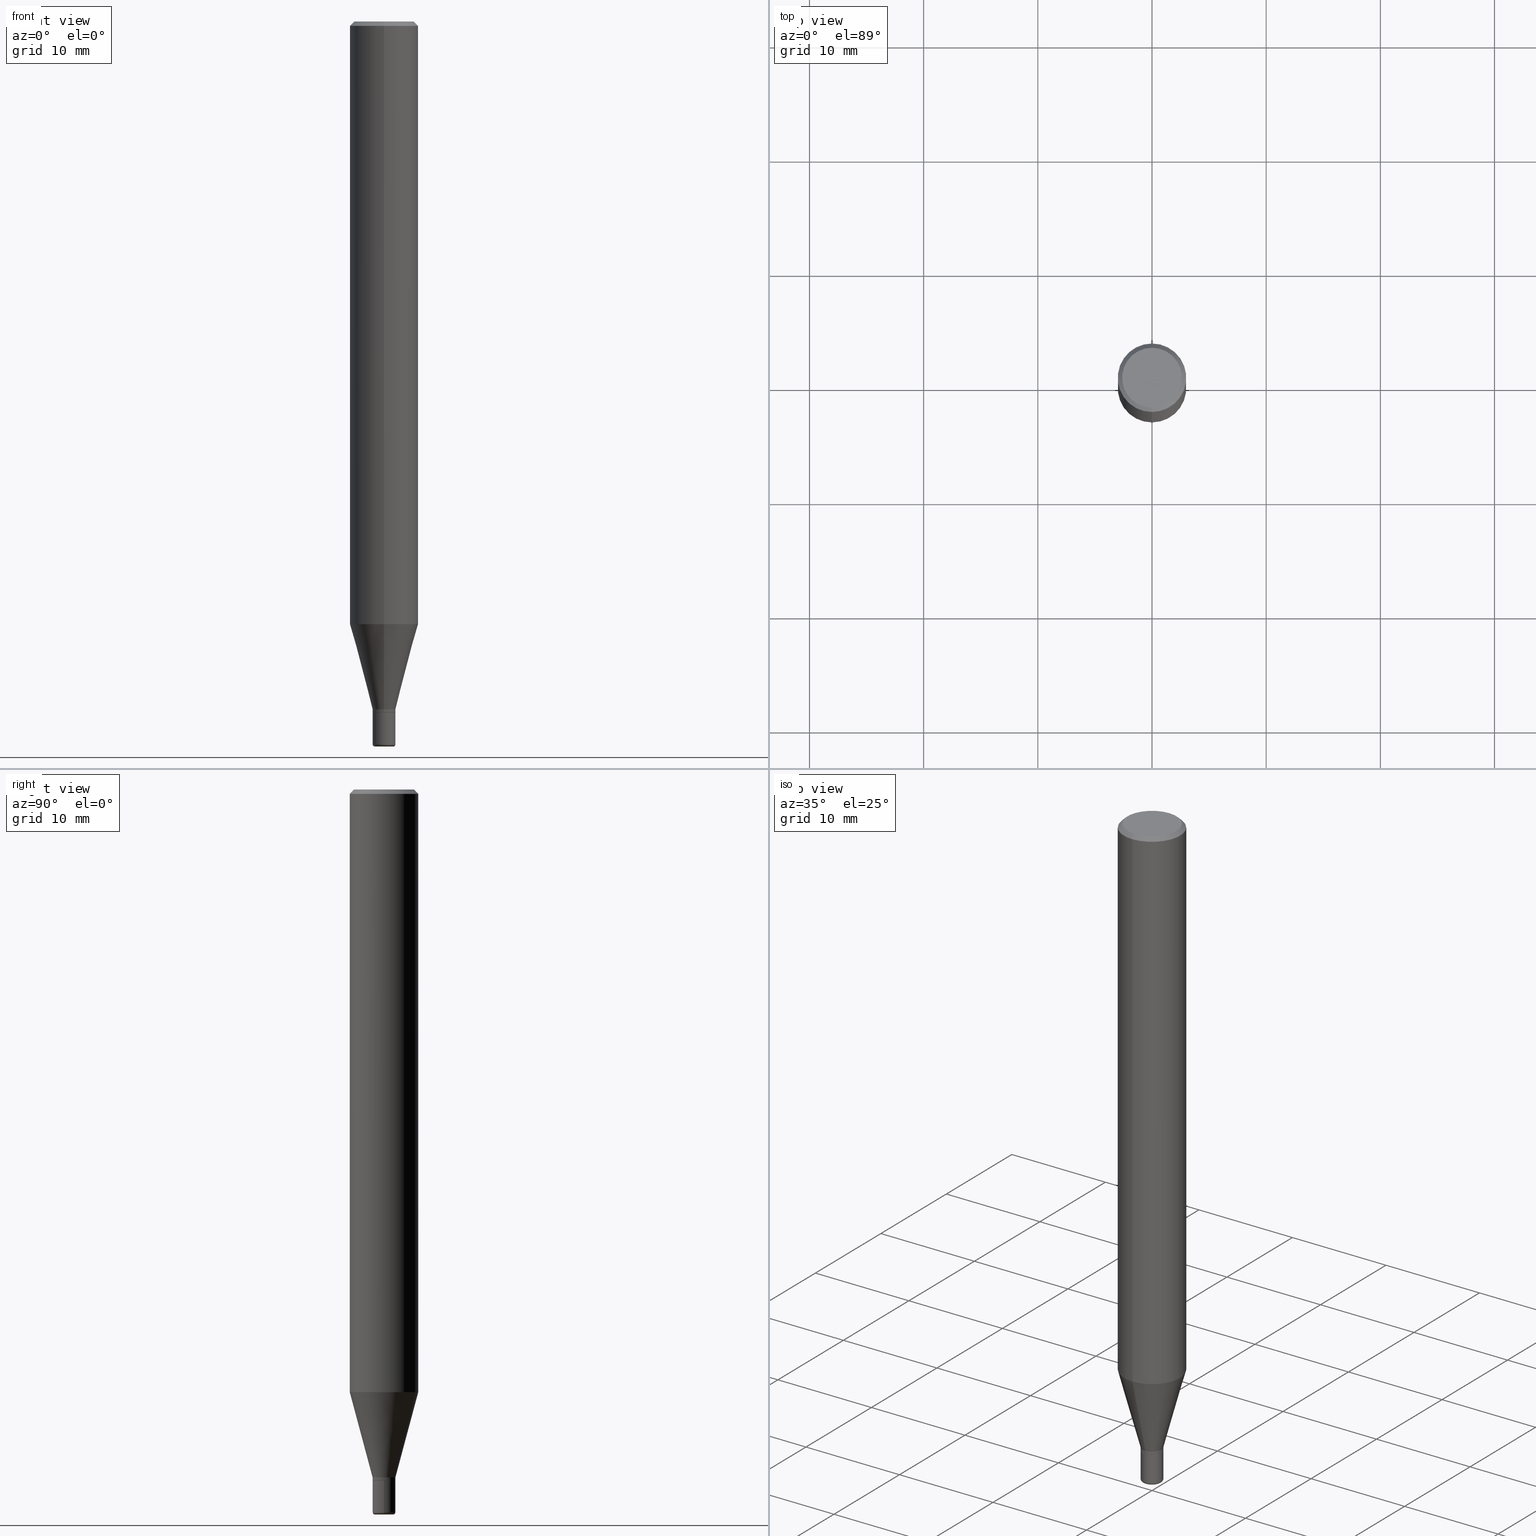
[diagram: canonical four-view strip — front | top / right | iso, engineering-drawing reading convention]
A machine part, canonical four-view strip (front | top / right | iso — engineering-drawing reading convention). The complete STEP part file that produces these views, byte-faithful:
ISO-10303-21;
HEADER;
FILE_DESCRIPTION (( 'STEP AP203' ),
    '1' );
FILE_NAME ('05345.STEP',
    '2024-02-29T19:37:12',
    ( '' ),
    ( '' ),
    'SwSTEP 2.0',
    'SolidWorks 2023',
    '' );
FILE_SCHEMA (( 'CONFIG_CONTROL_DESIGN' ));
ENDSEC;

DATA;
#1 = ADVANCED_FACE ( 'NONE', ( #170 ), #447, .F. ) ;
#2 = LINE ( 'NONE', #292, #290 ) ;
#3 = EDGE_LOOP ( 'NONE', ( #465, #212, #249, #289 ) ) ;
#4 = LINE ( 'NONE', #168, #514 ) ;
#5 = ORIENTED_EDGE ( 'NONE', *, *, #340, .T. ) ;
#6 = ORIENTED_EDGE ( 'NONE', *, *, #18, .T. ) ;
#7 = PERSON_AND_ORGANIZATION_ROLE ( 'classification_officer' ) ;
#8 = VERTEX_POINT ( 'NONE', #260 ) ;
#9 = CIRCLE ( 'NONE', #506, 0.03935000000000007242 ) ;
#10 = AXIS2_PLACEMENT_3D ( 'NONE', #492, #13, #98 ) ;
#11 = DIRECTION ( 'NONE',  ( -2.445160199248264608E-29, 3.491923281541562351E-15, 1.000000000000000000 ) ) ;
#12 = EDGE_CURVE ( 'NONE', #239, #297, #373, .T. ) ;
#13 = DIRECTION ( 'NONE',  ( -2.445468806185136597E-29, 3.491481338843145583E-15, 1.000000000000000000 ) ) ;
#14 = CARTESIAN_POINT ( 'NONE',  ( 0.03935000000000010711, -8.975900225897956159E-15, -2.492099999999999316 ) ) ;
#15 = VERTEX_POINT ( 'NONE', #66 ) ;
#16 = APPLICATION_CONTEXT ( 'configuration controlled 3d designs of mechanical parts and assemblies' ) ;
#17 = DIRECTION ( 'NONE',  ( 1.000000000000000000, -6.982962677686251722E-15, 4.883557194083107856E-29 ) ) ;
#18 = EDGE_CURVE ( 'NONE', #177, #8, #220, .T. ) ;
#19 = CONICAL_SURFACE ( 'NONE', #445, 0.03935000000000007242, 0.2617993877991495189 ) ;
#20 = FACE_OUTER_BOUND ( 'NONE', #3, .T. ) ;
#21 = VECTOR ( 'NONE', #356, 39.37007874015748854 ) ;
#22 = ORIENTED_EDGE ( 'NONE', *, *, #145, .F. ) ;
#23 = AXIS2_PLACEMENT_3D ( 'NONE', #397, #204, #360 ) ;
#24 = DIRECTION ( 'NONE',  ( 1.000000000000000000, -6.982962677686277755E-15, 0.000000000000000000 ) ) ;
#25 = PLANE ( 'NONE',  #88 ) ;
#26 = DIRECTION ( 'NONE',  ( 7.105427357601001859E-15, 1.000000000000000000, -3.491481338843145583E-15 ) ) ;
#27 = ORIENTED_EDGE ( 'NONE', *, *, #166, .F. ) ;
#28 = DIRECTION ( 'NONE',  ( 2.438088387897960049E-29, -3.491481338843145188E-15, -1.000000000000000000 ) ) ;
#29 = EDGE_LOOP ( 'NONE', ( #304, #288 ) ) ;
#30 = DATE_AND_TIME ( #416, #326 ) ;
#31 = AXIS2_PLACEMENT_3D ( 'NONE', #350, #509, #157 ) ;
#32 = CARTESIAN_POINT ( 'NONE',  ( 5.824862149452377611E-29, -8.316359400990489234E-15, -2.381899999999999906 ) ) ;
#33 = EDGE_CURVE ( 'NONE', #95, #48, #378, .T. ) ;
#34 = TOROIDAL_SURFACE ( 'NONE', #135, 0.03144999999999999185, 0.007900000000000111794 ) ;
#35 = DIRECTION ( 'NONE',  ( -2.445160199248264608E-29, 3.491923281541562351E-15, 1.000000000000000000 ) ) ;
#36 = DIRECTION ( 'NONE',  ( -2.445160199248264608E-29, 3.491923281541562351E-15, 1.000000000000000000 ) ) ;
#37 = CARTESIAN_POINT ( 'NONE',  ( 2.795985665216569822E-16, 0.03934999999999160003, -2.381400000000000627 ) ) ;
#38 = DIRECTION ( 'NONE',  ( -2.445160199248264608E-29, 3.491923281541562351E-15, 1.000000000000000000 ) ) ;
#39 = AXIS2_PLACEMENT_3D ( 'NONE', #417, #230, #420 ) ;
#40 = DIRECTION ( 'NONE',  ( -2.445468806185136597E-29, 3.491481338843145583E-15, 1.000000000000000000 ) ) ;
#41 = CARTESIAN_POINT ( 'NONE',  ( 2.795985665216578697E-16, 0.03934999999999178738, -2.371900000000000563 ) ) ;
#42 =( NAMED_UNIT ( * ) SI_UNIT ( $, .STERADIAN. ) SOLID_ANGLE_UNIT ( ) );
#43 = CARTESIAN_POINT ( 'NONE',  ( 6.094352811893978816E-29, -8.701120644531002820E-15, -2.492099999999999760 ) ) ;
#44 = EDGE_LOOP ( 'NONE', ( #251, #444 ) ) ;
#45 = ORIENTED_EDGE ( 'NONE', *, *, #425, .T. ) ;
#46 = AXIS2_PLACEMENT_3D ( 'NONE', #502, #413, #58 ) ;
#47 = DIRECTION ( 'NONE',  ( 1.000000000000000000, -6.982962677686250933E-15, 0.000000000000000000 ) ) ;
#48 = VERTEX_POINT ( 'NONE', #262 ) ;
#49 = VERTEX_POINT ( 'NONE', #14 ) ;
#50 = EDGE_LOOP ( 'NONE', ( #173, #450, #369, #483 ) ) ;
#51 = LENGTH_MEASURE_WITH_UNIT ( LENGTH_MEASURE( 0.02539999999999999897 ), #253 );
#52 = CARTESIAN_POINT ( 'NONE',  ( 5.824127078589441601E-29, -8.317412064303848413E-15, -2.381899999999999906 ) ) ;
#53 = ORIENTED_EDGE ( 'NONE', *, *, #252, .T. ) ;
#54 = CIRCLE ( 'NONE', #162, 0.03885000000000005116 ) ;
#55 = AXIS2_PLACEMENT_3D ( 'NONE', #175, #477, #436 ) ;
#56 = CARTESIAN_POINT ( 'NONE',  ( -2.747795813668976259E-16, -0.03935000000000850318, -2.381399999999999739 ) ) ;
#57 = PERSON_AND_ORGANIZATION ( #160, #348 ) ;
#58 = DIRECTION ( 'NONE',  ( -6.982962677686265922E-15, -1.000000000000000000, 3.487819265831411744E-15 ) ) ;
#59 = CARTESIAN_POINT ( 'NONE',  ( 8.246878922347483612E-16, 0.1180999999999999411, -0.01500000000000036894 ) ) ;
#60 = CC_DESIGN_DATE_AND_TIME_ASSIGNMENT ( #501, #467, ( #93 ) ) ;
#61 = APPROVAL_ROLE ( '' ) ;
#62 = DIRECTION ( 'NONE',  ( -2.445160199248264608E-29, 3.491923281541562351E-15, 1.000000000000000000 ) ) ;
#63 = EDGE_LOOP ( 'NONE', ( #273, #156, #70, #116 ) ) ;
#64 = DIRECTION ( 'NONE',  ( -2.445160199248264608E-29, 3.491923281541562351E-15, 1.000000000000000000 ) ) ;
#65 = COORDINATED_UNIVERSAL_TIME_OFFSET ( 5, 0, .BEHIND. ) ;
#66 = CARTESIAN_POINT ( 'NONE',  ( 8.391509709327291772E-16, 0.1180999999999927802, -2.078000998903951846 ) ) ;
#67 = ORIENTED_EDGE ( 'NONE', *, *, #517, .T. ) ;
#68 = CONICAL_SURFACE ( 'NONE', #463, 0.03885000000000005116, 0.7853981633975507526 ) ;
#69 = CARTESIAN_POINT ( 'NONE',  ( 0.03144999999999999185, -8.948317523321097191E-15, -2.500000000000000000 ) ) ;
#70 = ORIENTED_EDGE ( 'NONE', *, *, #242, .T. ) ;
#71 = PLANE ( 'NONE',  #474 ) ;
#72 = PERSON_AND_ORGANIZATION ( #160, #348 ) ;
#73 = VERTEX_POINT ( 'NONE', #457 ) ;
#74 = EDGE_CURVE ( 'NONE', #367, #73, #404, .T. ) ;
#75 = DIRECTION ( 'NONE',  ( -2.438088387897960049E-29, 3.491481338843145188E-15, 1.000000000000000000 ) ) ;
#76 = DESIGN_CONTEXT ( 'detailed design', #16, 'design' ) ;
#77 = DIRECTION ( 'NONE',  ( -6.982962677686265922E-15, -1.000000000000000000, 3.491923281541563140E-15 ) ) ;
#78 = ORIENTED_EDGE ( 'NONE', *, *, #353, .T. ) ;
#79 = FACE_OUTER_BOUND ( 'NONE', #365, .T. ) ;
#80 = ADVANCED_FACE ( 'NONE', ( #20 ), #188, .T. ) ;
#81 = FACE_OUTER_BOUND ( 'NONE', #286, .T. ) ;
#82 = FACE_OUTER_BOUND ( 'NONE', #50, .T. ) ;
#83 = LINE ( 'NONE', #41, #21 ) ;
#84 = CONICAL_SURFACE ( 'NONE', #371, 0.03885000000000005116, 0.7853981633975507526 ) ;
#85 =( CONVERSION_BASED_UNIT ( 'INCH', #51 ) LENGTH_UNIT ( ) NAMED_UNIT ( #269 ) );
#86 = AXIS2_PLACEMENT_3D ( 'NONE', #511, #234, #77 ) ;
#87 = CLOSED_SHELL ( 'NONE', ( #96, #287, #510, #80, #151, #499, #497, #379, #1, #313, #246, #454 ) ) ;
#88 = AXIS2_PLACEMENT_3D ( 'NONE', #227, #498, #316 ) ;
#89 = CARTESIAN_POINT ( 'NONE',  ( 0.03935000000000000303, -8.591138982357444151E-15, -2.381899999999999906 ) ) ;
#90 = EDGE_CURVE ( 'NONE', #48, #15, #83, .T. ) ;
#91 = ADVANCED_FACE ( 'NONE', ( #515 ), #240, .T. ) ;
#92 = ORIENTED_EDGE ( 'NONE', *, *, #74, .T. ) ;
#93 = SECURITY_CLASSIFICATION ( '', '', #127 ) ;
#94 = VECTOR ( 'NONE', #193, 39.37007874015748143 ) ;
#95 = VERTEX_POINT ( 'NONE', #37 ) ;
#96 = ADVANCED_FACE ( 'NONE', ( #518 ), #323, .T. ) ;
#97 = APPLICATION_PROTOCOL_DEFINITION ( 'international standard', 'config_control_design', 1994, #16 ) ;
#98 = DIRECTION ( 'NONE',  ( 1.000000000000000000, -6.982962677686250933E-15, 0.000000000000000000 ) ) ;
#99 = EDGE_CURVE ( 'NONE', #191, #297, #278, .T. ) ;
#100 =( NAMED_UNIT ( * ) PLANE_ANGLE_UNIT ( ) SI_UNIT ( $, .RADIAN. ) );
#101 = DIRECTION ( 'NONE',  ( -2.445160199248264608E-29, 3.491923281541562351E-15, 1.000000000000000000 ) ) ;
#102 = PERSON_AND_ORGANIZATION ( #160, #348 ) ;
#103 = CIRCLE ( 'NONE', #504, 0.03935000000000007242 ) ;
#104 = EDGE_LOOP ( 'NONE', ( #215, #78, #441, #165 ) ) ;
#105 = LINE ( 'NONE', #59, #349 ) ;
#106 = CARTESIAN_POINT ( 'NONE',  ( 5.799675476596958470E-29, -8.282492831488431921E-15, -2.371900000000000119 ) ) ;
#107 = CARTESIAN_POINT ( 'NONE',  ( -1.114119938109327852E-48, 1.591070127638127819E-34, 4.556429220677854878E-20 ) ) ;
#108 = EDGE_LOOP ( 'NONE', ( #167, #6, #211, #112 ) ) ;
#109 = CARTESIAN_POINT ( 'NONE',  ( 6.094352811893978816E-29, -8.701120644531002820E-15, -2.492099999999999760 ) ) ;
#110 = FACE_OUTER_BOUND ( 'NONE', #108, .T. ) ;
#111 = CC_DESIGN_SECURITY_CLASSIFICATION ( #93, ( #243 ) ) ;
#112 = ORIENTED_EDGE ( 'NONE', *, *, #415, .F. ) ;
#113 = ORIENTED_EDGE ( 'NONE', *, *, #460, .F. ) ;
#114 = CARTESIAN_POINT ( 'NONE',  ( 5.822904498489816884E-29, -8.315666102663078061E-15, -2.381400000000000183 ) ) ;
#115 = APPROVAL_DATE_TIME ( #30, #321 ) ;
#116 = ORIENTED_EDGE ( 'NONE', *, *, #442, .F. ) ;
#117 = DIRECTION ( 'NONE',  ( -2.445468806185136877E-29, 3.491481338843145188E-15, 1.000000000000000000 ) ) ;
#118 = LINE ( 'NONE', #354, #309 ) ;
#119 = ADVANCED_FACE ( 'NONE', ( #81 ), #440, .T. ) ;
#120 = FACE_OUTER_BOUND ( 'NONE', #184, .T. ) ;
#121 = DIRECTION ( 'NONE',  ( -6.982962677686265922E-15, -1.000000000000000000, 3.491923281541563140E-15 ) ) ;
#122 = DIRECTION ( 'NONE',  ( 1.000000000000000000, -6.982962677686277755E-15, 0.000000000000000000 ) ) ;
#123 = CARTESIAN_POINT ( 'NONE',  ( 6.094352811893977695E-29, -8.701120644531001242E-15, -2.492099999999999316 ) ) ;
#124 = EDGE_LOOP ( 'NONE', ( #137, #293, #189, #485 ) ) ;
#125 = DATE_AND_TIME ( #361, #268 ) ;
#126 = CARTESIAN_POINT ( 'NONE',  ( 0.000000000000000000, 0.000000000000000000, 0.000000000000000000 ) ) ;
#127 = SECURITY_CLASSIFICATION_LEVEL ( 'unclassified' ) ;
#128 = EDGE_CURVE ( 'NONE', #8, #49, #490, .T. ) ;
#129 = ORIENTED_EDGE ( 'NONE', *, *, #192, .F. ) ;
#130 = EDGE_LOOP ( 'NONE', ( #199, #449, #132, #325 ) ) ;
#131 = VERTEX_POINT ( 'NONE', #210 ) ;
#132 = ORIENTED_EDGE ( 'NONE', *, *, #252, .F. ) ;
#133 = CC_DESIGN_APPROVAL ( #470, ( #322 ) ) ;
#134 = ORIENTED_EDGE ( 'NONE', *, *, #205, .T. ) ;
#135 = AXIS2_PLACEMENT_3D ( 'NONE', #109, #140, #17 ) ;
#136 = MANIFOLD_SOLID_BREP ( 'Body-Move/Copy2[1]', #327 ) ;
#137 = ORIENTED_EDGE ( 'NONE', *, *, #183, .F. ) ;
#138 = MANIFOLD_SOLID_BREP ( 'Body-Move/Copy2[2]', #87 ) ;
#139 = CARTESIAN_POINT ( 'NONE',  ( 3.667740298872386437E-31, -5.237884922312328859E-17, -0.01499999999999995781 ) ) ;
#140 = DIRECTION ( 'NONE',  ( -2.445468806185136597E-29, 3.491481338843145583E-15, 1.000000000000000000 ) ) ;
#141 = DIRECTION ( 'NONE',  ( -2.445160199248264608E-29, 3.491923281541562351E-15, 1.000000000000000000 ) ) ;
#142 = PERSON_AND_ORGANIZATION ( #160, #348 ) ;
#143 = CC_DESIGN_PERSON_AND_ORGANIZATION_ASSIGNMENT ( #406, #7, ( #93 ) ) ;
#144 = CARTESIAN_POINT ( 'NONE',  ( 5.824862149452377611E-29, -8.316359400990489234E-15, -2.381899999999999906 ) ) ;
#145 = EDGE_CURVE ( 'NONE', #8, #131, #4, .T. ) ;
#146 = ORIENTED_EDGE ( 'NONE', *, *, #442, .T. ) ;
#147 = LINE ( 'NONE', #254, #152 ) ;
#148 = DIRECTION ( 'NONE',  ( -2.445160199248264608E-29, 3.491923281541562351E-15, 1.000000000000000000 ) ) ;
#149 = CARTESIAN_POINT ( 'NONE',  ( -0.03144999999999999185, -8.477654954134451468E-15, -2.492099999999999760 ) ) ;
#150 = CARTESIAN_POINT ( 'NONE',  ( 3.667740298872386437E-31, -5.237884922312328859E-17, -0.01499999999999995781 ) ) ;
#151 = ADVANCED_FACE ( 'NONE', ( #386 ), #291, .T. ) ;
#152 = VECTOR ( 'NONE', #422, 39.37007874015748143 ) ;
#153 = AXIS2_PLACEMENT_3D ( 'NONE', #399, #222, #213 ) ;
#154 = AXIS2_PLACEMENT_3D ( 'NONE', #126, #479, #121 ) ;
#155 = DIRECTION ( 'NONE',  ( -1.000000000000000000, 6.982962677686265922E-15, -4.876176775795935793E-29 ) ) ;
#156 = ORIENTED_EDGE ( 'NONE', *, *, #280, .T. ) ;
#157 = DIRECTION ( 'NONE',  ( -6.982962677686265922E-15, -1.000000000000000000, 3.491923281541562746E-15 ) ) ;
#158 = LINE ( 'NONE', #320, #174 ) ;
#159 = APPLICATION_CONTEXT ( 'configuration controlled 3d designs of mechanical parts and assemblies' ) ;
#160 = PERSON ( 'UNSPECIFIED', 'UNSPECIFIED', 'UNSPECIFIED', ('UNSPECIFIED'), ('UNSPECIFIED'), ('UNSPECIFIED') ) ;
#161 = CARTESIAN_POINT ( 'NONE',  ( 6.113672015462842613E-29, -8.728703347107864943E-15, -2.500000000000000000 ) ) ;
#162 = AXIS2_PLACEMENT_3D ( 'NONE', #338, #64, #496 ) ;
#163 = DIRECTION ( 'NONE',  ( -6.982962677686266711E-15, -1.000000000000000000, 3.491481338843145583E-15 ) ) ;
#164 = PERSON_AND_ORGANIZATION_ROLE ( 'design_owner' ) ;
#165 = ORIENTED_EDGE ( 'NONE', *, *, #242, .F. ) ;
#166 = EDGE_CURVE ( 'NONE', #191, #15, #437, .T. ) ;
#167 = ORIENTED_EDGE ( 'NONE', *, *, #363, .T. ) ;
#168 = CARTESIAN_POINT ( 'NONE',  ( -0.03935000000000005160, 2.795985665215997898E-16, -1.935600958015308094E-30 ) ) ;
#169 = VERTEX_POINT ( 'NONE', #89 ) ;
#170 = FACE_OUTER_BOUND ( 'NONE', #315, .T. ) ;
#171 = VERTEX_POINT ( 'NONE', #382 ) ;
#172 = COORDINATED_UNIVERSAL_TIME_OFFSET ( 5, 0, .BEHIND. ) ;
#173 = ORIENTED_EDGE ( 'NONE', *, *, #319, .F. ) ;
#174 = VECTOR ( 'NONE', #512, 39.37007874015748143 ) ;
#175 = CARTESIAN_POINT ( 'NONE',  ( 0.000000000000000000, 0.000000000000000000, 0.000000000000000000 ) ) ;
#176 = DATE_AND_TIME ( #480, #317 ) ;
#177 = VERTEX_POINT ( 'NONE', #380 ) ;
#178 = DIRECTION ( 'NONE',  ( -6.982962677686264344E-15, -1.000000000000000000, 6.942434545525433679E-15 ) ) ;
#179 = COORDINATED_UNIVERSAL_TIME_OFFSET ( 5, 0, .BEHIND. ) ;
#180 = ORIENTED_EDGE ( 'NONE', *, *, #264, .T. ) ;
#181 = DIRECTION ( 'NONE',  ( -2.445160199248264608E-29, 3.491923281541562351E-15, 1.000000000000000000 ) ) ;
#182 = EDGE_CURVE ( 'NONE', #297, #239, #217, .T. ) ;
#183 = EDGE_CURVE ( 'NONE', #73, #367, #241, .T. ) ;
#184 = EDGE_LOOP ( 'NONE', ( #180, #391, #312, #113 ) ) ;
#185 = CARTESIAN_POINT ( 'NONE',  ( 6.113672015462842613E-29, -8.728703347107864943E-15, -2.500000000000000000 ) ) ;
#186 = CC_DESIGN_APPROVAL ( #408, ( #243 ) ) ;
#187 = AXIS2_PLACEMENT_3D ( 'NONE', #345, #101, #335 ) ;
#188 = CYLINDRICAL_SURFACE ( 'NONE', #55, 0.1180999999999999966 ) ;
#189 = ORIENTED_EDGE ( 'NONE', *, *, #182, .T. ) ;
#190 = DIRECTION ( 'NONE',  ( -6.982962677686266711E-15, -1.000000000000000000, 0.000000000000000000 ) ) ;
#191 = VERTEX_POINT ( 'NONE', #295 ) ;
#192 = EDGE_CURVE ( 'NONE', #15, #191, #308, .T. ) ;
#193 = DIRECTION ( 'NONE',  ( -4.937700262165053702E-15, -0.7071067811866175168, 0.7071067811864775177 ) ) ;
#194 = LINE ( 'NONE', #393, #270 ) ;
#195 = CIRCLE ( 'NONE', #446, 0.03935000000000000303 ) ;
#196 = DIRECTION ( 'NONE',  ( 1.000000000000000000, -6.982962677686265922E-15, 4.876176775795935793E-29 ) ) ;
#197 = ORIENTED_EDGE ( 'NONE', *, *, #401, .F. ) ;
#198 = DIRECTION ( 'NONE',  ( -6.982962677686264344E-15, -1.000000000000000000, 6.942434545525433679E-15 ) ) ;
#199 = ORIENTED_EDGE ( 'NONE', *, *, #275, .T. ) ;
#200 = DIRECTION ( 'NONE',  ( 1.000000000000000000, -6.982962677686266711E-15, 4.876176775795935793E-29 ) ) ;
#201 = CARTESIAN_POINT ( 'NONE',  ( 2.778222096822577163E-16, 0.03884999999999173836, -2.381899999999999906 ) ) ;
#202 = AXIS2_PLACEMENT_3D ( 'NONE', #150, #375, #494 ) ;
#203 = ORIENTED_EDGE ( 'NONE', *, *, #363, .F. ) ;
#204 = DIRECTION ( 'NONE',  ( -2.445468806185136597E-29, 3.491481338843145583E-15, 1.000000000000000000 ) ) ;
#205 = EDGE_CURVE ( 'NONE', #177, #271, #283, .T. ) ;
#206 = APPLICATION_PROTOCOL_DEFINITION ( 'international standard', 'config_control_design', 1994, #159 ) ;
#207 = DIRECTION ( 'NONE',  ( 1.000000000000000000, -6.982962677686251722E-15, 4.883557194083107856E-29 ) ) ;
#208 = VERTEX_POINT ( 'NONE', #218 ) ;
#209 = VERTEX_POINT ( 'NONE', #56 ) ;
#210 = CARTESIAN_POINT ( 'NONE',  ( -0.03935000000000000303, -8.229141456239145054E-15, -2.381899999999999906 ) ) ;
#211 = ORIENTED_EDGE ( 'NONE', *, *, #264, .F. ) ;
#212 = ORIENTED_EDGE ( 'NONE', *, *, #267, .T. ) ;
#213 = DIRECTION ( 'NONE',  ( 1.000000000000000000, 0.000000000000000000, 0.000000000000000000 ) ) ;
#214 = PRODUCT ( '05345', '05345', '', ( #370 ) ) ;
#215 = ORIENTED_EDGE ( 'NONE', *, *, #266, .T. ) ;
#216 = DIRECTION ( 'NONE',  ( 2.445160199248264608E-29, -3.491923281541562351E-15, -1.000000000000000000 ) ) ;
#217 = CIRCLE ( 'NONE', #202, 0.1180999999999999966 ) ;
#218 = CARTESIAN_POINT ( 'NONE',  ( -2.747795813668970342E-16, -0.03935000000000835052, -2.371900000000000119 ) ) ;
#219 = APPROVAL_PERSON_ORGANIZATION ( #72, #321, #61 ) ;
#220 = CIRCLE ( 'NONE', #423, 0.007900000000000110059 ) ;
#221 = CIRCLE ( 'NONE', #347, 0.03935000000000005160 ) ;
#222 = DIRECTION ( 'NONE',  ( 0.000000000000000000, 0.000000000000000000, 1.000000000000000000 ) ) ;
#223 = LINE ( 'NONE', #307, #94 ) ;
#224 = COORDINATED_UNIVERSAL_TIME_OFFSET ( 5, 0, .BEHIND. ) ;
#225 = DIRECTION ( 'NONE',  ( -1.000000000000000000, 7.105427357600967149E-15, 0.000000000000000000 ) ) ;
#226 = DIRECTION ( 'NONE',  ( -2.445468806185136597E-29, 3.491481338843145583E-15, 1.000000000000000000 ) ) ;
#227 = CARTESIAN_POINT ( 'NONE',  ( 5.824127078589441601E-29, -8.317412064303848413E-15, -2.381899999999999906 ) ) ;
#228 = VECTOR ( 'NONE', #117, 39.37007874015748143 ) ;
#229 = CIRCLE ( 'NONE', #424, 0.007900000000000110059 ) ;
#230 = DIRECTION ( 'NONE',  ( 2.445160199248264328E-29, -3.491923281541562351E-15, -1.000000000000000000 ) ) ;
#231 = EDGE_CURVE ( 'NONE', #169, #131, #334, .T. ) ;
#232 = CARTESIAN_POINT ( 'NONE',  ( 5.822904498489816884E-29, -8.315666102663078061E-15, -2.381400000000000183 ) ) ;
#233 = CARTESIAN_POINT ( 'NONE',  ( 2.747795813670128489E-16, 0.03934999999999168330, -2.381900000000000350 ) ) ;
#234 = DIRECTION ( 'NONE',  ( -2.445160199248264608E-29, 3.491923281541562351E-15, 1.000000000000000000 ) ) ;
#235 = LOCAL_TIME ( 14, 37, 12.00000000000000000, #224 ) ;
#236 = CARTESIAN_POINT ( 'NONE',  ( 5.799675476596958470E-29, -8.282492831488431921E-15, -2.371900000000000119 ) ) ;
#237 = CYLINDRICAL_SURFACE ( 'NONE', #86, 0.03935000000000005854 ) ;
#238 = DIRECTION ( 'NONE',  ( 1.000000000000000000, -6.982962677686149170E-15, 0.000000000000000000 ) ) ;
#239 = VERTEX_POINT ( 'NONE', #459 ) ;
#240 = CYLINDRICAL_SURFACE ( 'NONE', #23, 0.03935000000000005160 ) ;
#241 = CIRCLE ( 'NONE', #394, 0.1031000000000000111 ) ;
#242 = EDGE_CURVE ( 'NONE', #171, #209, #223, .T. ) ;
#243 = PRODUCT_DEFINITION_FORMATION_WITH_SPECIFIED_SOURCE ( 'ANY', '', #214, .NOT_KNOWN. ) ;
#244 = APPROVAL_STATUS ( 'not_yet_approved' ) ;
#245 = CIRCLE ( 'NONE', #374, 0.03885000000000005116 ) ;
#246 = ADVANCED_FACE ( 'NONE', ( #261 ), #68, .T. ) ;
#247 = ORIENTED_EDGE ( 'NONE', *, *, #183, .T. ) ;
#248 = APPROVAL_DATE_TIME ( #377, #408 ) ;
#249 = ORIENTED_EDGE ( 'NONE', *, *, #182, .F. ) ;
#250 = CONICAL_SURFACE ( 'NONE', #318, 0.1180999999999999966, 0.7853981633974495002 ) ;
#251 = ORIENTED_EDGE ( 'NONE', *, *, #231, .T. ) ;
#252 = EDGE_CURVE ( 'NONE', #208, #48, #103, .T. ) ;
#253 =( LENGTH_UNIT ( ) NAMED_UNIT ( * ) SI_UNIT ( $, .METRE. ) );
#254 = CARTESIAN_POINT ( 'NONE',  ( 8.391509709326781971E-16, 0.1180999999999999966, -4.123961395500585500E-16 ) ) ;
#255 = DIRECTION ( 'NONE',  ( -1.807323732225324617E-15, -0.2588190451025174088, 0.9659258262890690894 ) ) ;
#256 = LOCAL_TIME ( 14, 37, 12.00000000000000000, #172 ) ;
#257 = DIRECTION ( 'NONE',  ( -6.982962677686266711E-15, -1.000000000000000000, 0.000000000000000000 ) ) ;
#258 = AXIS2_PLACEMENT_3D ( 'NONE', #123, #40, #47 ) ;
#259 = APPROVAL_STATUS ( 'not_yet_approved' ) ;
#260 = CARTESIAN_POINT ( 'NONE',  ( -0.03935000000000010711, -8.229141456239143476E-15, -2.492099999999999316 ) ) ;
#261 = FACE_OUTER_BOUND ( 'NONE', #63, .T. ) ;
#262 = CARTESIAN_POINT ( 'NONE',  ( 5.593747687271934248E-16, 0.03934999999999178738, -2.371900000000000563 ) ) ;
#263 = CARTESIAN_POINT ( 'NONE',  ( -8.246878922347475723E-16, -0.1181000000000000522, -0.01499999999999954495 ) ) ;
#264 = EDGE_CURVE ( 'NONE', #49, #8, #484, .T. ) ;
#265 = ADVANCED_FACE ( 'NONE', ( #110 ), #34, .T. ) ;
#266 = EDGE_CURVE ( 'NONE', #171, #402, #54, .T. ) ;
#267 = EDGE_CURVE ( 'NONE', #15, #239, #147, .T. ) ;
#268 = LOCAL_TIME ( 14, 37, 12.00000000000000000, #478 ) ;
#269 = DIMENSIONAL_EXPONENTS ( 1.000000000000000000, 0.000000000000000000, 0.000000000000000000, 0.000000000000000000, 0.000000000000000000, 0.000000000000000000, 0.000000000000000000 ) ;
#270 = VECTOR ( 'NONE', #38, 39.37007874015748143 ) ;
#271 = VERTEX_POINT ( 'NONE', #69 ) ;
#272 = DIRECTION ( 'NONE',  ( 2.445160199248264608E-29, -3.491923281541562351E-15, -1.000000000000000000 ) ) ;
#273 = ORIENTED_EDGE ( 'NONE', *, *, #353, .F. ) ;
#274 = CYLINDRICAL_SURFACE ( 'NONE', #31, 0.1180999999999999966 ) ;
#275 = EDGE_CURVE ( 'NONE', #209, #95, #221, .T. ) ;
#276 = DIRECTION ( 'NONE',  ( 5.024295867788576727E-15, 0.7071067811866224018, 0.7071067811864726327 ) ) ;
#277 = DIRECTION ( 'NONE',  ( 1.000000000000000000, -6.982962677686269077E-15, 0.000000000000000000 ) ) ;
#278 = LINE ( 'NONE', #433, #398 ) ;
#279 = DIRECTION ( 'NONE',  ( 6.982962677686265922E-15, 1.000000000000000000, -3.487819265831411744E-15 ) ) ;
#280 = EDGE_CURVE ( 'NONE', #402, #171, #245, .T. ) ;
#281 = ORIENTED_EDGE ( 'NONE', *, *, #415, .T. ) ;
#282 = PERSON_AND_ORGANIZATION ( #160, #348 ) ;
#283 = CIRCLE ( 'NONE', #328, 0.03144999999999999185 ) ;
#284 = PERSON_AND_ORGANIZATION_ROLE ( 'creator' ) ;
#285 = AXIS2_PLACEMENT_3D ( 'NONE', #161, #516, #122 ) ;
#286 = EDGE_LOOP ( 'NONE', ( #443, #134, #281, #343 ) ) ;
#287 = ADVANCED_FACE ( 'NONE', ( #407 ), #84, .T. ) ;
#288 = ORIENTED_EDGE ( 'NONE', *, *, #280, .F. ) ;
#289 = ORIENTED_EDGE ( 'NONE', *, *, #99, .F. ) ;
#290 = VECTOR ( 'NONE', #255, 39.37007874015748854 ) ;
#291 = CONICAL_SURFACE ( 'NONE', #358, 0.03935000000000007242, 0.2617993877991495189 ) ;
#292 = CARTESIAN_POINT ( 'NONE',  ( -2.747795813668970342E-16, -0.03935000000000835052, -2.371900000000000119 ) ) ;
#293 = ORIENTED_EDGE ( 'NONE', *, *, #319, .T. ) ;
#294 = DIRECTION ( 'NONE',  ( 6.982962677686265922E-15, 1.000000000000000000, -3.487819265831411744E-15 ) ) ;
#295 = CARTESIAN_POINT ( 'NONE',  ( -8.246878922346967894E-16, -0.1181000000000071992, -2.078000998903951402 ) ) ;
#296 = PERSON_AND_ORGANIZATION_ROLE ( 'creator' ) ;
#297 = VERTEX_POINT ( 'NONE', #263 ) ;
#298 = DIRECTION ( 'NONE',  ( -2.445160199248264608E-29, 3.491923281541562351E-15, 1.000000000000000000 ) ) ;
#299 = DIRECTION ( 'NONE',  ( -2.445160199248264608E-29, 3.491923281541562351E-15, 1.000000000000000000 ) ) ;
#300 = CARTESIAN_POINT ( 'NONE',  ( 2.795985665215997898E-16, 0.03935000000000005854, -1.374071811286607071E-16 ) ) ;
#301 = DIRECTION ( 'NONE',  ( 4.937700262164553564E-15, 0.7071067811865459074, -0.7071067811865491270 ) ) ;
#302 = CC_DESIGN_PERSON_AND_ORGANIZATION_ASSIGNMENT ( #368, #324, ( #243 ) ) ;
#303 = EDGE_CURVE ( 'NONE', #367, #239, #105, .T. ) ;
#304 = ORIENTED_EDGE ( 'NONE', *, *, #266, .F. ) ;
#305 = DIRECTION ( 'NONE',  ( -2.445468806185136597E-29, 3.491481338843145583E-15, 1.000000000000000000 ) ) ;
#306 = EDGE_LOOP ( 'NONE', ( #22, #448, #426, #197 ) ) ;
#307 = CARTESIAN_POINT ( 'NONE',  ( -2.712881000280535834E-16, -0.03885000000000836395, -2.381899999999999906 ) ) ;
#308 = CIRCLE ( 'NONE', #187, 0.1180999999999999966 ) ;
#309 = VECTOR ( 'NONE', #276, 39.37007874015748143 ) ;
#310 = ORIENTED_EDGE ( 'NONE', *, *, #267, .F. ) ;
#311 = LINE ( 'NONE', #466, #228 ) ;
#312 = ORIENTED_EDGE ( 'NONE', *, *, #231, .F. ) ;
#313 = ADVANCED_FACE ( 'NONE', ( #341 ), #25, .F. ) ;
#314 = FACE_OUTER_BOUND ( 'NONE', #331, .T. ) ;
#315 = EDGE_LOOP ( 'NONE', ( #92, #247 ) ) ;
#316 = DIRECTION ( 'NONE',  ( -6.982962677686265922E-15, -1.000000000000000000, 3.491923281541562351E-15 ) ) ;
#317 = LOCAL_TIME ( 14, 37, 12.00000000000000000, #179 ) ;
#318 = AXIS2_PLACEMENT_3D ( 'NONE', #429, #272, #279 ) ;
#319 = EDGE_CURVE ( 'NONE', #73, #297, #158, .T. ) ;
#320 = CARTESIAN_POINT ( 'NONE',  ( -8.102248135368174406E-16, -0.1181000000000000522, -0.01499999999999954495 ) ) ;
#321 = APPROVAL ( #464, 'UNSPECIFIED' ) ;
#322 = PRODUCT_DEFINITION ( 'UNKNOWN', '', #243, #76 ) ;
#323 = CYLINDRICAL_SURFACE ( 'NONE', #154, 0.03935000000000005854 ) ;
#324 = PERSON_AND_ORGANIZATION_ROLE ( 'design_supplier' ) ;
#325 = ORIENTED_EDGE ( 'NONE', *, *, #425, .F. ) ;
#326 = LOCAL_TIME ( 14, 37, 12.00000000000000000, #65 ) ;
#327 = CLOSED_SHELL ( 'NONE', ( #265, #432, #455, #91, #119, #362 ) ) ;
#328 = AXIS2_PLACEMENT_3D ( 'NONE', #185, #226, #24 ) ;
#329 = PRODUCT_DEFINITION_SHAPE ( 'NONE', 'NONE',  #322 ) ;
#330 = ORIENTED_EDGE ( 'NONE', *, *, #33, .F. ) ;
#331 = EDGE_LOOP ( 'NONE', ( #487, #5, #67, #129 ) ) ;
#332 = ORIENTED_EDGE ( 'NONE', *, *, #192, .T. ) ;
#333 = CC_DESIGN_DATE_AND_TIME_ASSIGNMENT ( #125, #452, ( #322 ) ) ;
#334 = CIRCLE ( 'NONE', #409, 0.03935000000000000303 ) ;
#335 = DIRECTION ( 'NONE',  ( -6.982962677686265922E-15, -1.000000000000000000, 4.626330217890369336E-15 ) ) ;
#336 = PERSON_AND_ORGANIZATION ( #160, #348 ) ;
#337 = DIRECTION ( 'NONE',  ( -6.982962677686265922E-15, -1.000000000000000000, 6.942434545525437624E-15 ) ) ;
#338 = CARTESIAN_POINT ( 'NONE',  ( 5.824127078589441601E-29, -8.317412064303848413E-15, -2.381899999999999906 ) ) ;
#339 = DIRECTION ( 'NONE',  ( -2.445160199248264608E-29, 3.491923281541562351E-15, 1.000000000000000000 ) ) ;
#340 = EDGE_CURVE ( 'NONE', #48, #208, #9, .T. ) ;
#341 = FACE_OUTER_BOUND ( 'NONE', #29, .T. ) ;
#342 = CC_DESIGN_PERSON_AND_ORGANIZATION_ASSIGNMENT ( #57, #164, ( #214 ) ) ;
#343 = ORIENTED_EDGE ( 'NONE', *, *, #128, .F. ) ;
#344 = ORIENTED_EDGE ( 'NONE', *, *, #99, .T. ) ;
#345 = CARTESIAN_POINT ( 'NONE',  ( 5.081045336518078348E-29, -7.256220067139329431E-15, -2.078000998903951402 ) ) ;
#346 = FACE_OUTER_BOUND ( 'NONE', #44, .T. ) ;
#347 = AXIS2_PLACEMENT_3D ( 'NONE', #232, #181, #337 ) ;
#348 = ORGANIZATION ( 'UNSPECIFIED', 'UNSPECIFIED', '' ) ;
#349 = VECTOR ( 'NONE', #301, 39.37007874015748143 ) ;
#350 = CARTESIAN_POINT ( 'NONE',  ( 0.000000000000000000, 0.000000000000000000, 0.000000000000000000 ) ) ;
#351 = FACE_OUTER_BOUND ( 'NONE', #124, .T. ) ;
#352 = ORIENTED_EDGE ( 'NONE', *, *, #90, .T. ) ;
#353 = EDGE_CURVE ( 'NONE', #402, #95, #118, .T. ) ;
#354 = CARTESIAN_POINT ( 'NONE',  ( 2.760458528428574642E-16, 0.03884999999999173836, -2.381899999999999906 ) ) ;
#355 = AXIS2_PLACEMENT_3D ( 'NONE', #114, #428, #427 ) ;
#356 = DIRECTION ( 'NONE',  ( 1.839019923739594793E-15, 0.2588190451025241812, 0.9659258262890673130 ) ) ;
#357 = DIRECTION ( 'NONE',  ( -6.982962677686264344E-15, -1.000000000000000000, 6.942434545525433679E-15 ) ) ;
#358 = AXIS2_PLACEMENT_3D ( 'NONE', #106, #141, #357 ) ;
#359 = CYLINDRICAL_SURFACE ( 'NONE', #453, 0.03935000000000005160 ) ;
#360 = DIRECTION ( 'NONE',  ( 1.000000000000000000, -6.982962677686266711E-15, 4.876176775795935793E-29 ) ) ;
#361 = CALENDAR_DATE ( 2024, 29, 2 ) ;
#362 = ADVANCED_FACE ( 'NONE', ( #79 ), #71, .F. ) ;
#363 = EDGE_CURVE ( 'NONE', #271, #177, #410, .T. ) ;
#364 = AXIS2_PLACEMENT_3D ( 'NONE', #139, #216, #294 ) ;
#365 = EDGE_LOOP ( 'NONE', ( #203, #403 ) ) ;
#366 = ADVANCED_BREP_SHAPE_REPRESENTATION ( '05345', ( #136, #138, #153 ), #461 ) ;
#367 = VERTEX_POINT ( 'NONE', #469 ) ;
#368 = PERSON_AND_ORGANIZATION ( #160, #348 ) ;
#369 = ORIENTED_EDGE ( 'NONE', *, *, #303, .T. ) ;
#370 = MECHANICAL_CONTEXT ( 'NONE', #159, 'mechanical' ) ;
#371 = AXIS2_PLACEMENT_3D ( 'NONE', #385, #298, #456 ) ;
#372 = CONICAL_SURFACE ( 'NONE', #364, 0.1180999999999999966, 0.7853981633974495002 ) ;
#373 = CIRCLE ( 'NONE', #46, 0.1180999999999999966 ) ;
#374 = AXIS2_PLACEMENT_3D ( 'NONE', #411, #503, #190 ) ;
#375 = DIRECTION ( 'NONE',  ( -2.445160199248264608E-29, 3.491923281541562351E-15, 1.000000000000000000 ) ) ;
#376 = DIRECTION ( 'NONE',  ( -2.445160199248264608E-29, 3.491923281541562351E-15, 1.000000000000000000 ) ) ;
#377 = DATE_AND_TIME ( #489, #235 ) ;
#378 = LINE ( 'NONE', #300, #405 ) ;
#379 = ADVANCED_FACE ( 'NONE', ( #82 ), #250, .T. ) ;
#380 = CARTESIAN_POINT ( 'NONE',  ( -0.03144999999999999185, -8.463379867360356141E-15, -2.500000000000000000 ) ) ;
#381 = DIRECTION ( 'NONE',  ( -6.982962677686265922E-15, -1.000000000000000000, 3.491923281541561957E-15 ) ) ;
#382 = CARTESIAN_POINT ( 'NONE',  ( -2.712881000280535834E-16, -0.03885000000000836395, -2.381899999999999906 ) ) ;
#383 = AXIS2_PLACEMENT_3D ( 'NONE', #468, #299, #439 ) ;
#384 = DIRECTION ( 'NONE',  ( -2.445468806185136877E-29, 3.491481338843145188E-15, 1.000000000000000000 ) ) ;
#385 = CARTESIAN_POINT ( 'NONE',  ( 5.824127078589441601E-29, -8.317412064303848413E-15, -2.381899999999999906 ) ) ;
#386 = FACE_OUTER_BOUND ( 'NONE', #495, .T. ) ;
#387 = CARTESIAN_POINT ( 'NONE',  ( 0.03144999999999999185, -8.920734820744236646E-15, -2.492099999999999760 ) ) ;
#388 = FACE_OUTER_BOUND ( 'NONE', #488, .T. ) ;
#389 = CARTESIAN_POINT ( 'NONE',  ( 0.000000000000000000, 0.000000000000000000, 0.000000000000000000 ) ) ;
#390 = CARTESIAN_POINT ( 'NONE',  ( 5.799675476596958470E-29, -8.282492831488431921E-15, -2.371900000000000119 ) ) ;
#391 = ORIENTED_EDGE ( 'NONE', *, *, #145, .T. ) ;
#392 = DIRECTION ( 'NONE',  ( -2.445160199248264608E-29, 3.491923281541562351E-15, 1.000000000000000000 ) ) ;
#393 = CARTESIAN_POINT ( 'NONE',  ( -2.747795813669549662E-16, -0.03935000000000005854, 1.374071811286607071E-16 ) ) ;
#394 = AXIS2_PLACEMENT_3D ( 'NONE', #458, #148, #418 ) ;
#395 = DIRECTION ( 'NONE',  ( -2.445468806185136597E-29, 3.491481338843145583E-15, 1.000000000000000000 ) ) ;
#396 = ORIENTED_EDGE ( 'NONE', *, *, #12, .F. ) ;
#397 = CARTESIAN_POINT ( 'NONE',  ( 0.000000000000000000, 0.000000000000000000, 0.000000000000000000 ) ) ;
#398 = VECTOR ( 'NONE', #392, 39.37007874015748143 ) ;
#399 = CARTESIAN_POINT ( 'NONE',  ( 0.000000000000000000, 0.000000000000000000, 0.000000000000000000 ) ) ;
#400 = ORIENTED_EDGE ( 'NONE', *, *, #340, .F. ) ;
#401 = EDGE_CURVE ( 'NONE', #131, #169, #195, .T. ) ;
#402 = VERTEX_POINT ( 'NONE', #201 ) ;
#403 = ORIENTED_EDGE ( 'NONE', *, *, #205, .F. ) ;
#404 = CIRCLE ( 'NONE', #473, 0.1031000000000000111 ) ;
#405 = VECTOR ( 'NONE', #62, 39.37007874015748143 ) ;
#406 = PERSON_AND_ORGANIZATION ( #160, #348 ) ;
#407 = FACE_OUTER_BOUND ( 'NONE', #104, .T. ) ;
#408 = APPROVAL ( #259, 'UNSPECIFIED' ) ;
#409 = AXIS2_PLACEMENT_3D ( 'NONE', #144, #305, #451 ) ;
#410 = CIRCLE ( 'NONE', #285, 0.03144999999999999185 ) ;
#411 = CARTESIAN_POINT ( 'NONE',  ( 5.824127078589441601E-29, -8.317412064303848413E-15, -2.381899999999999906 ) ) ;
#412 = APPROVAL_ROLE ( '' ) ;
#413 = DIRECTION ( 'NONE',  ( -2.445160199248264608E-29, 3.491923281541562351E-15, 1.000000000000000000 ) ) ;
#414 = CARTESIAN_POINT ( 'NONE',  ( 5.799675476596958470E-29, -8.282492831488431921E-15, -2.371900000000000119 ) ) ;
#415 = EDGE_CURVE ( 'NONE', #271, #49, #229, .T. ) ;
#416 = CALENDAR_DATE ( 2024, 29, 2 ) ;
#417 = CARTESIAN_POINT ( 'NONE',  ( 7.199434520694541042E-16, 0.1031000000000000111, -3.599945081808317145E-16 ) ) ;
#418 = DIRECTION ( 'NONE',  ( -6.982962677686265922E-15, -1.000000000000000000, 3.491923281541561957E-15 ) ) ;
#419 = CALENDAR_DATE ( 2024, 29, 2 ) ;
#420 = DIRECTION ( 'NONE',  ( 6.982962677686265922E-15, 1.000000000000000000, -3.491923281541562351E-15 ) ) ;
#421 = APPROVAL_PERSON_ORGANIZATION ( #102, #408, #412 ) ;
#422 = DIRECTION ( 'NONE',  ( -2.445160199248264608E-29, 3.491923281541562351E-15, 1.000000000000000000 ) ) ;
#423 = AXIS2_PLACEMENT_3D ( 'NONE', #149, #26, #225 ) ;
#424 = AXIS2_PLACEMENT_3D ( 'NONE', #387, #163, #238 ) ;
#425 = EDGE_CURVE ( 'NONE', #209, #208, #194, .T. ) ;
#426 = ORIENTED_EDGE ( 'NONE', *, *, #460, .T. ) ;
#427 = DIRECTION ( 'NONE',  ( -6.982962677686265922E-15, -1.000000000000000000, 6.942434545525437624E-15 ) ) ;
#428 = DIRECTION ( 'NONE',  ( -2.445160199248264608E-29, 3.491923281541562351E-15, 1.000000000000000000 ) ) ;
#429 = CARTESIAN_POINT ( 'NONE',  ( 3.667740298872386437E-31, -5.237884922312328859E-17, -0.01499999999999995781 ) ) ;
#430 = CC_DESIGN_PERSON_AND_ORGANIZATION_ASSIGNMENT ( #142, #296, ( #322 ) ) ;
#431 = FACE_OUTER_BOUND ( 'NONE', #435, .T. ) ;
#432 = ADVANCED_FACE ( 'NONE', ( #120 ), #359, .T. ) ;
#433 = CARTESIAN_POINT ( 'NONE',  ( -8.246878922347479668E-16, -0.1180999999999999966, 4.123961395500585500E-16 ) ) ;
#434 = DIRECTION ( 'NONE',  ( -2.445468806185136597E-29, 3.491481338843145583E-15, 1.000000000000000000 ) ) ;
#435 = EDGE_LOOP ( 'NONE', ( #330, #146, #45, #400 ) ) ;
#436 = DIRECTION ( 'NONE',  ( -6.982962677686265922E-15, -1.000000000000000000, 3.491923281541562746E-15 ) ) ;
#437 = CIRCLE ( 'NONE', #383, 0.1180999999999999966 ) ;
#438 = APPROVAL_PERSON_ORGANIZATION ( #336, #470, #491 ) ;
#439 = DIRECTION ( 'NONE',  ( -6.982962677686265922E-15, -1.000000000000000000, 4.626330217890369336E-15 ) ) ;
#440 = TOROIDAL_SURFACE ( 'NONE', #481, 0.03144999999999999185, 0.007900000000000111794 ) ;
#441 = ORIENTED_EDGE ( 'NONE', *, *, #275, .F. ) ;
#442 = EDGE_CURVE ( 'NONE', #95, #209, #482, .T. ) ;
#443 = ORIENTED_EDGE ( 'NONE', *, *, #18, .F. ) ;
#444 = ORIENTED_EDGE ( 'NONE', *, *, #401, .T. ) ;
#445 = AXIS2_PLACEMENT_3D ( 'NONE', #236, #35, #198 ) ;
#446 = AXIS2_PLACEMENT_3D ( 'NONE', #32, #434, #277 ) ;
#447 = PLANE ( 'NONE',  #39 ) ;
#448 = ORIENTED_EDGE ( 'NONE', *, *, #128, .T. ) ;
#449 = ORIENTED_EDGE ( 'NONE', *, *, #33, .T. ) ;
#450 = ORIENTED_EDGE ( 'NONE', *, *, #74, .F. ) ;
#451 = DIRECTION ( 'NONE',  ( 1.000000000000000000, -6.982962677686269077E-15, 0.000000000000000000 ) ) ;
#452 = DATE_TIME_ROLE ( 'creation_date' ) ;
#453 = AXIS2_PLACEMENT_3D ( 'NONE', #389, #462, #200 ) ;
#454 = ADVANCED_FACE ( 'NONE', ( #431 ), #237, .T. ) ;
#455 = ADVANCED_FACE ( 'NONE', ( #346 ), #505, .F. ) ;
#456 = DIRECTION ( 'NONE',  ( -6.982962677686266711E-15, -1.000000000000000000, 0.000000000000000000 ) ) ;
#457 = CARTESIAN_POINT ( 'NONE',  ( -7.587710785535310407E-16, -0.1031000000000000111, 3.600628546191418560E-16 ) ) ;
#458 = CARTESIAN_POINT ( 'NONE',  ( -1.114119938109327852E-48, 1.591070127638127819E-34, 4.556429220677854878E-20 ) ) ;
#459 = CARTESIAN_POINT ( 'NONE',  ( 8.391509709327292758E-16, 0.1180999999999999273, -0.01500000000000036894 ) ) ;
#460 = EDGE_CURVE ( 'NONE', #49, #169, #311, .T. ) ;
#461 =( GEOMETRIC_REPRESENTATION_CONTEXT ( 3 ) GLOBAL_UNCERTAINTY_ASSIGNED_CONTEXT ( ( #486 ) ) GLOBAL_UNIT_ASSIGNED_CONTEXT ( ( #85, #100, #42 ) ) REPRESENTATION_CONTEXT ( 'NONE', 'WORKASPACE' ) );
#462 = DIRECTION ( 'NONE',  ( -2.445468806185136597E-29, 3.491481338843145583E-15, 1.000000000000000000 ) ) ;
#463 = AXIS2_PLACEMENT_3D ( 'NONE', #52, #376, #257 ) ;
#464 = APPROVAL_STATUS ( 'not_yet_approved' ) ;
#465 = ORIENTED_EDGE ( 'NONE', *, *, #166, .T. ) ;
#466 = CARTESIAN_POINT ( 'NONE',  ( 0.03935000000000005160, -2.747795813669549662E-16, 1.918775561275703176E-30 ) ) ;
#467 = DATE_TIME_ROLE ( 'classification_date' ) ;
#468 = CARTESIAN_POINT ( 'NONE',  ( 5.081045336518078348E-29, -7.256220067139329431E-15, -2.078000998903951402 ) ) ;
#469 = CARTESIAN_POINT ( 'NONE',  ( 7.723156721521011834E-16, 0.1031000000000000111, -3.599717260347282354E-16 ) ) ;
#470 = APPROVAL ( #244, 'UNSPECIFIED' ) ;
#471 = DIRECTION ( 'NONE',  ( -6.982962677686264344E-15, -1.000000000000000000, 6.942434545525433679E-15 ) ) ;
#472 = AXIS2_PLACEMENT_3D ( 'NONE', #233, #28, #155 ) ;
#473 = AXIS2_PLACEMENT_3D ( 'NONE', #107, #339, #381 ) ;
#474 = AXIS2_PLACEMENT_3D ( 'NONE', #476, #75, #196 ) ;
#475 = ORIENTED_EDGE ( 'NONE', *, *, #517, .F. ) ;
#476 = CARTESIAN_POINT ( 'NONE',  ( 6.199188644380781470E-29, -8.606238667193129794E-15, -2.500000000000000000 ) ) ;
#477 = DIRECTION ( 'NONE',  ( -2.445160199248264608E-29, 3.491923281541562351E-15, 1.000000000000000000 ) ) ;
#478 = COORDINATED_UNIVERSAL_TIME_OFFSET ( 5, 0, .BEHIND. ) ;
#479 = DIRECTION ( 'NONE',  ( -2.445160199248264608E-29, 3.491923281541562351E-15, 1.000000000000000000 ) ) ;
#480 = CALENDAR_DATE ( 2024, 29, 2 ) ;
#481 = AXIS2_PLACEMENT_3D ( 'NONE', #43, #395, #207 ) ;
#482 = CIRCLE ( 'NONE', #355, 0.03935000000000005160 ) ;
#483 = ORIENTED_EDGE ( 'NONE', *, *, #12, .T. ) ;
#484 = CIRCLE ( 'NONE', #10, 0.03935000000000010711 ) ;
#485 = ORIENTED_EDGE ( 'NONE', *, *, #303, .F. ) ;
#486 = UNCERTAINTY_MEASURE_WITH_UNIT (LENGTH_MEASURE( 1.000000000000000082E-05 ), #85, 'distance_accuracy_value', 'NONE');
#487 = ORIENTED_EDGE ( 'NONE', *, *, #90, .F. ) ;
#488 = EDGE_LOOP ( 'NONE', ( #310, #332, #344, #396 ) ) ;
#489 = CALENDAR_DATE ( 2024, 29, 2 ) ;
#490 = CIRCLE ( 'NONE', #258, 0.03935000000000010711 ) ;
#491 = APPROVAL_ROLE ( '' ) ;
#492 = CARTESIAN_POINT ( 'NONE',  ( 6.094352811893977695E-29, -8.701120644531001242E-15, -2.492099999999999316 ) ) ;
#493 = APPROVAL_DATE_TIME ( #176, #470 ) ;
#494 = DIRECTION ( 'NONE',  ( -6.982962677686265922E-15, -1.000000000000000000, 3.487819265831411744E-15 ) ) ;
#495 = EDGE_LOOP ( 'NONE', ( #53, #352, #27, #475 ) ) ;
#496 = DIRECTION ( 'NONE',  ( -6.982962677686266711E-15, -1.000000000000000000, 0.000000000000000000 ) ) ;
#497 = ADVANCED_FACE ( 'NONE', ( #388 ), #274, .T. ) ;
#498 = DIRECTION ( 'NONE',  ( -2.445160199248264328E-29, 3.491923281541562351E-15, 1.000000000000000000 ) ) ;
#499 = ADVANCED_FACE ( 'NONE', ( #314 ), #19, .T. ) ;
#500 = PRODUCT_RELATED_PRODUCT_CATEGORY ( 'detail', '', ( #214 ) ) ;
#501 = DATE_AND_TIME ( #419, #256 ) ;
#502 = CARTESIAN_POINT ( 'NONE',  ( 3.667740298872386437E-31, -5.237884922312328859E-17, -0.01499999999999995781 ) ) ;
#503 = DIRECTION ( 'NONE',  ( -2.445160199248264608E-29, 3.491923281541562351E-15, 1.000000000000000000 ) ) ;
#504 = AXIS2_PLACEMENT_3D ( 'NONE', #414, #11, #178 ) ;
#505 = PLANE ( 'NONE',  #472 ) ;
#506 = AXIS2_PLACEMENT_3D ( 'NONE', #390, #36, #471 ) ;
#507 = SHAPE_DEFINITION_REPRESENTATION ( #329, #366 ) ;
#508 = CC_DESIGN_PERSON_AND_ORGANIZATION_ASSIGNMENT ( #282, #284, ( #243 ) ) ;
#509 = DIRECTION ( 'NONE',  ( -2.445160199248264608E-29, 3.491923281541562351E-15, 1.000000000000000000 ) ) ;
#510 = ADVANCED_FACE ( 'NONE', ( #351 ), #372, .T. ) ;
#511 = CARTESIAN_POINT ( 'NONE',  ( 0.000000000000000000, 0.000000000000000000, 0.000000000000000000 ) ) ;
#512 = DIRECTION ( 'NONE',  ( -4.851104656540969797E-15, -0.7071067811865507924, -0.7071067811865442421 ) ) ;
#513 = CC_DESIGN_APPROVAL ( #321, ( #93 ) ) ;
#514 = VECTOR ( 'NONE', #384, 39.37007874015748143 ) ;
#515 = FACE_OUTER_BOUND ( 'NONE', #306, .T. ) ;
#516 = DIRECTION ( 'NONE',  ( -2.445468806185136597E-29, 3.491481338843145583E-15, 1.000000000000000000 ) ) ;
#517 = EDGE_CURVE ( 'NONE', #208, #191, #2, .T. ) ;
#518 = FACE_OUTER_BOUND ( 'NONE', #130, .T. ) ;
ENDSEC;
END-ISO-10303-21;
